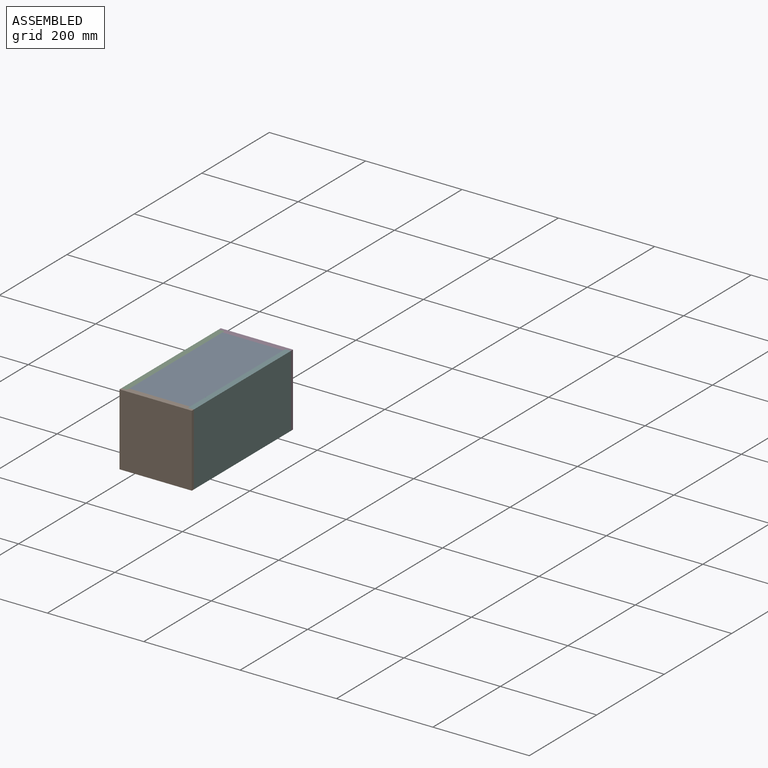
[diagram: assembled view]
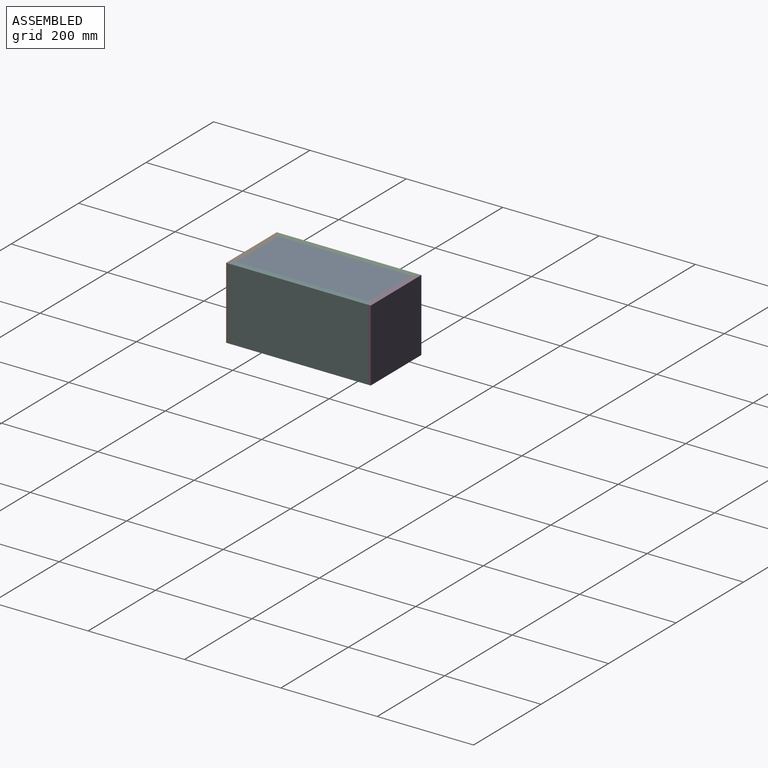
[diagram: assembled view, second angle]
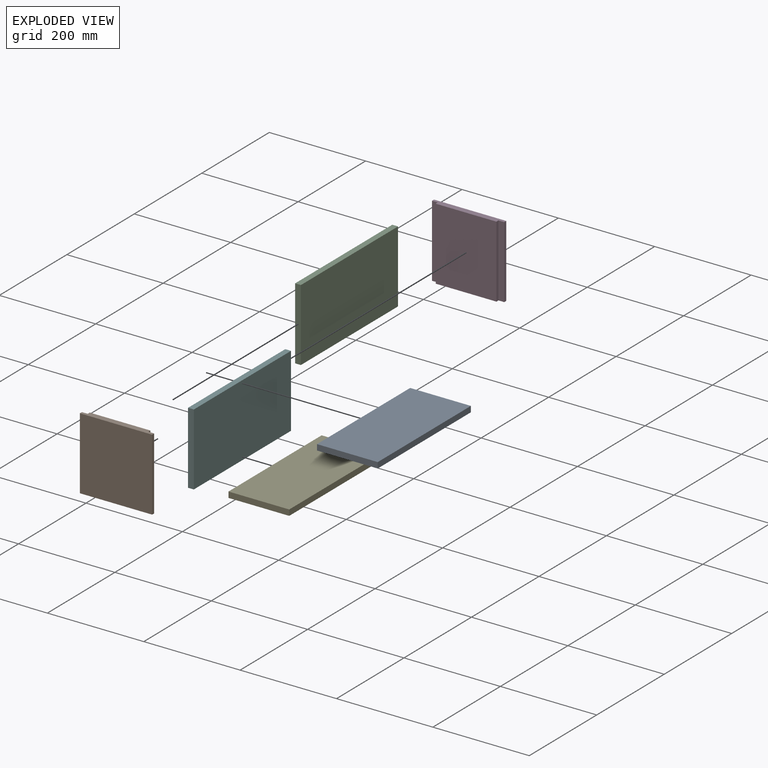
[diagram: exploded view]
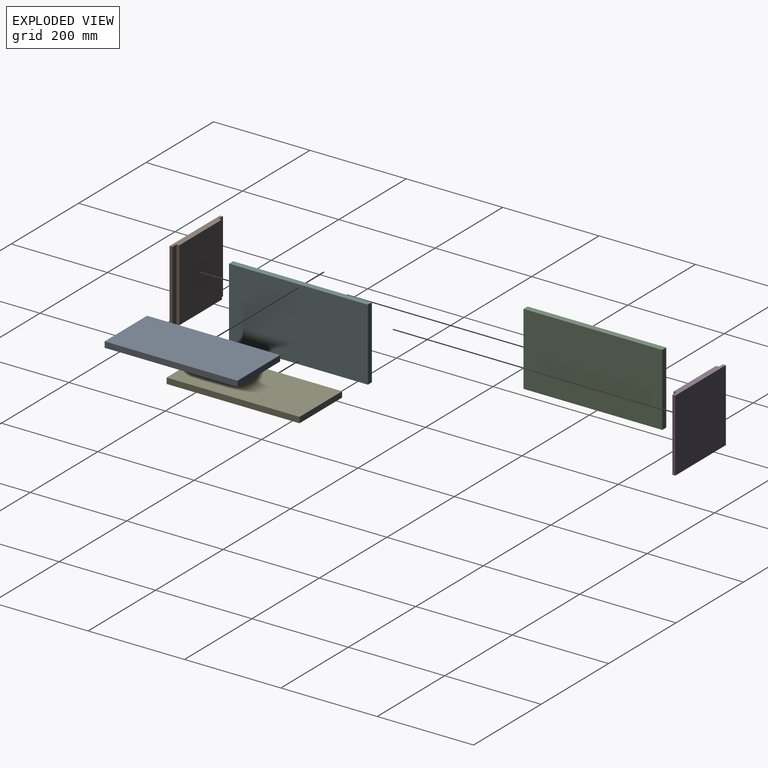
[diagram: exploded view, second angle]
ASSEMBLY  parts=6 mates=5
PART A: 6 faces, bbox 276x126x12 mm
  f0: plane 126x12mm, normal (-1,0,0), area 1512mm2, adj f1,f3,f4,f5
  f1: plane 276x12mm, normal (0,-1,0), area 3312mm2, adj f0,f2,f4,f5
  f2: plane 126x12mm, normal (1,0,0), area 1512mm2, adj f1,f3,f4,f5
  f3: plane 276x12mm, normal (0,1,0), area 3312mm2, adj f0,f2,f4,f5
  f4: plane 276x126mm, normal (0,0,1), area 34776mm2, adj f0,f1,f2,f3
  f5: plane 276x126mm, normal (0,0,-1), area 34776mm2, adj f0,f1,f2,f3
PART B: 10 faces, bbox 150x12x150 mm
  f0: plane 150x12mm, normal (0,1,0), area 1800mm2, adj f1,f7,f8,f9
  f1: plane 150x6mm, normal (-1,0,0), area 900mm2, adj f0,f2,f8,f9
  f2: plane 150x150mm, normal (0,-1,0), area 22500mm2, adj f1,f3,f8,f9
  f3: plane 150x6mm, normal (1,0,0), area 900mm2, adj f2,f4,f8,f9
  f4: plane 150x12mm, normal (0,1,0), area 1800mm2, adj f3,f5,f8,f9
  f5: plane 150x6mm, normal (1,0,0), area 900mm2, adj f4,f6,f8,f9
  f6: plane 150x126mm, normal (0,1,0), area 18900mm2, adj f5,f7,f8,f9
  f7: plane 150x6mm, normal (-1,0,0), area 900mm2, adj f0,f6,f8,f9
  f8: plane 150x12mm, normal (0,0,1), area 1656mm2, adj f0,f1,f2,f3,f4,f5,f6,f7
  f9: plane 150x12mm, normal (0,0,-1), area 1656mm2, adj f0,f1,f2,f3,f4,f5,f6,f7
PART C: 6 faces, bbox 288x150x12 mm
  f0: plane 150x12mm, normal (1,0,0), area 1800mm2, adj f1,f3,f4,f5
  f1: plane 288x12mm, normal (0,1,0), area 3456mm2, adj f0,f2,f4,f5
  f2: plane 150x12mm, normal (-1,0,0), area 1800mm2, adj f1,f3,f4,f5
  f3: plane 288x12mm, normal (0,-1,0), area 3456mm2, adj f0,f2,f4,f5
  f4: plane 288x150mm, normal (0,0,1), area 43200mm2, adj f0,f1,f2,f3
  f5: plane 288x150mm, normal (0,0,-1), area 43200mm2, adj f0,f1,f2,f3
PART D: same geometry as B
PART E: same geometry as A
PART F: same geometry as C
PLACE A rot(axis=(0,0,-1),90deg) t=(50.59,84.32,80.98)mm
PLACE B t=(50.59,-59.68,-57.02)mm fixed
PLACE C rot(axis=(0.58,0.58,0.58),120deg) t=(-24.41,84.32,17.98)mm
PLACE D rot(axis=(-1,0,0),180deg) t=(50.59,228.32,92.98)mm
PLACE E rot(axis=(0,0,-1),90deg) t=(50.59,84.32,-57.02)mm
PLACE F rot(axis=(0.58,-0.58,-0.58),120deg) t=(125.59,84.32,17.98)mm
MATE fastened B.f0 <-> C.f2  axis (0,1,0) through (-18.41,-59.68,17.98)mm
MATE fastened C.f0 <-> D.f0  axis (0,1,0) through (-18.41,228.32,17.98)mm
MATE fastened B.f4 <-> F.f0  axis (0,1,0) through (119.59,-59.68,17.98)mm
MATE fastened D.f6 <-> A.f0  axis (0,-1,0) through (50.59,222.32,92.98)mm
MATE fastened B.f6 <-> E.f2  axis (0,1,0) through (50.59,-53.68,-57.02)mm
